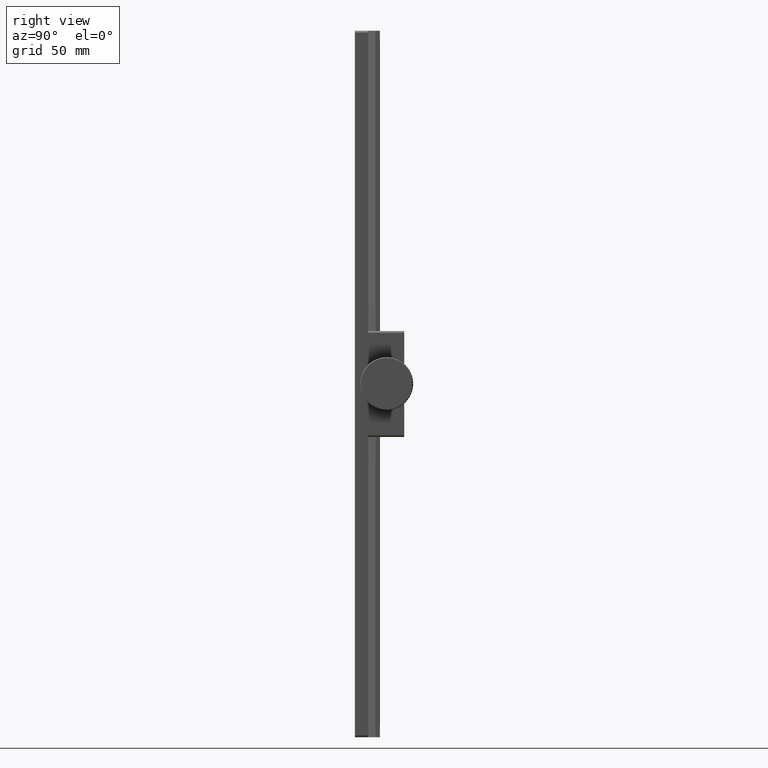
[diagram: clean part render]
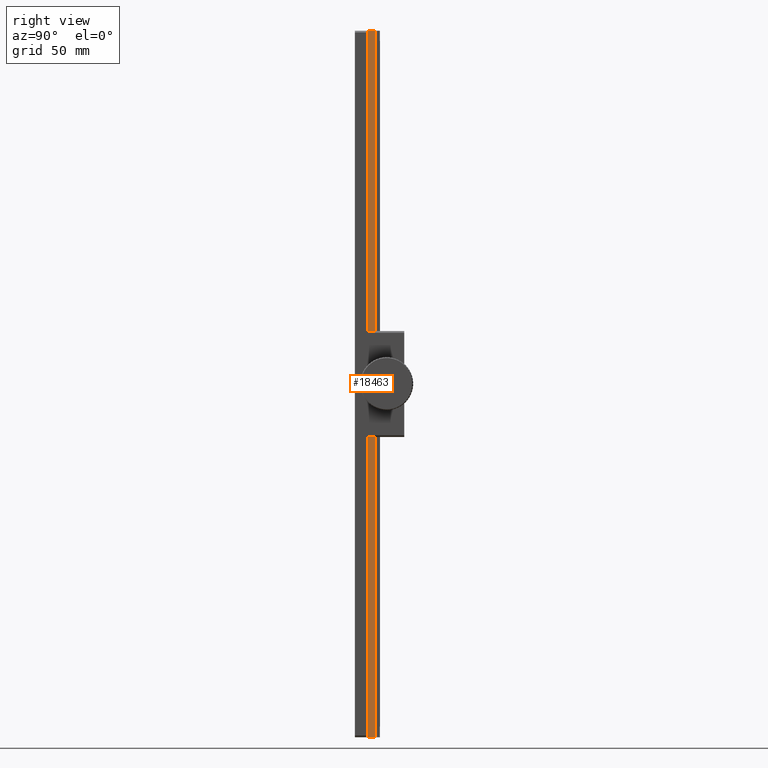
[diagram: same view with one face highlighted and labeled with its STEP entity id]
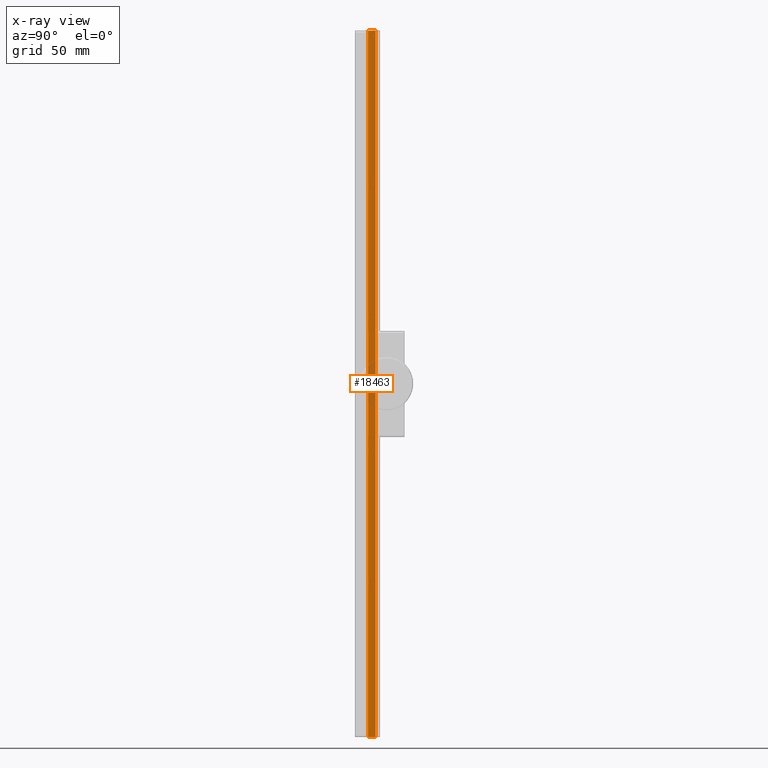
[diagram: x-ray of the same camera — body ghosted, the highlighted face saturated]
A machine part, right view. The second image highlights one B-rep face of the part: STEP entity #18463.
The next image is the same camera in x-ray: the body ghosted, the highlighted face saturated — about 5% of this face is hidden behind the body in this view.
In plain terms, the highlighted planar face has unit normal (-0.866, 0.5, 0).
Its self-contained STEP definition (entity closure, byte-faithful):
#1001 = DIRECTION ( 'NONE',  ( -0.8660254037844345998, 0.5000000000000071054, 0.000000000000000000 ) ) ;
#1452 = AXIS2_PLACEMENT_3D ( 'NONE', #15537, #1001, #85757 ) ;
#2059 = ORIENTED_EDGE ( 'NONE', *, *, #59597, .F. ) ;
#5658 = VERTEX_POINT ( 'NONE', #49187 ) ;
#8688 = VERTEX_POINT ( 'NONE', #91041 ) ;
#14538 = EDGE_CURVE ( 'NONE', #93984, #8688, #81279, .T. ) ;
#15537 = CARTESIAN_POINT ( 'NONE',  ( 82.71511587513879249, 69.30272800986782045, 413.8231807833473681 ) ) ;
#18463 = ADVANCED_FACE ( 'NONE', ( #72207 ), #38423, .F. ) ;
#22948 = VECTOR ( 'NONE', #92284, 1000.000000000000000 ) ;
#30060 = VECTOR ( 'NONE', #65663, 1000.000000000000227 ) ;
#31478 = LINE ( 'NONE', #95431, #84532 ) ;
#32239 = LINE ( 'NONE', #73319, #52479 ) ;
#35474 = CARTESIAN_POINT ( 'NONE',  ( 82.41511587513878112, 68.78311276759733062, 413.8231807833473681 ) ) ;
#38423 = PLANE ( 'NONE',  #1452 ) ;
#41594 = EDGE_CURVE ( 'NONE', #83625, #8688, #60564, .T. ) ;
#48340 = DIRECTION ( 'NONE',  ( -0.5000000000000073275, -0.8660254037844343777, 0.000000000000000000 ) ) ;
#49187 = CARTESIAN_POINT ( 'NONE',  ( 82.41511587513879533, 68.78311276759721693, 13.82318078334727751 ) ) ;
#50800 = CARTESIAN_POINT ( 'NONE',  ( 80.00156960994748090, 64.60272800986783182, 13.82318078334727041 ) ) ;
#52479 = VECTOR ( 'NONE', #48340, 1000.000000000000114 ) ;
#56931 = CARTESIAN_POINT ( 'NONE',  ( 82.41511587513879533, 68.78311276759724535, 413.8231807833473681 ) ) ;
#57831 = ORIENTED_EDGE ( 'NONE', *, *, #101830, .F. ) ;
#59597 = EDGE_CURVE ( 'NONE', #5658, #83625, #32239, .T. ) ;
#60564 = LINE ( 'NONE', #69372, #22948 ) ;
#61724 = EDGE_LOOP ( 'NONE', ( #57831, #71842, #64046, #2059 ) ) ;
#64046 = ORIENTED_EDGE ( 'NONE', *, *, #41594, .F. ) ;
#65663 = DIRECTION ( 'NONE',  ( -0.4999999999999936162, -0.8660254037844422603, 0.000000000000000000 ) ) ;
#69372 = CARTESIAN_POINT ( 'NONE',  ( 80.00156960994749511, 64.60272800986781760, 413.8231807833473681 ) ) ;
#71842 = ORIENTED_EDGE ( 'NONE', *, *, #14538, .T. ) ;
#72207 = FACE_OUTER_BOUND ( 'NONE', #61724, .T. ) ;
#73319 = CARTESIAN_POINT ( 'NONE',  ( 82.41511587513878112, 68.78311276759717430, 13.82318078334728284 ) ) ;
#81279 = LINE ( 'NONE', #35474, #30060 ) ;
#83625 = VERTEX_POINT ( 'NONE', #50800 ) ;
#84532 = VECTOR ( 'NONE', #86100, 1000.000000000000000 ) ;
#85757 = DIRECTION ( 'NONE',  ( -0.5000000000000069944, -0.8660254037844344888, 0.000000000000000000 ) ) ;
#86100 = DIRECTION ( 'NONE',  ( -0.000000000000000000, -0.000000000000000000, -1.000000000000000000 ) ) ;
#91041 = CARTESIAN_POINT ( 'NONE',  ( 80.00156960994748090, 64.60272800986783182, 413.8231807833473681 ) ) ;
#92284 = DIRECTION ( 'NONE',  ( 0.000000000000000000, 0.000000000000000000, 1.000000000000000000 ) ) ;
#93984 = VERTEX_POINT ( 'NONE', #56931 ) ;
#95431 = CARTESIAN_POINT ( 'NONE',  ( 82.41511587513885218, 68.78311276759728798, 413.8231807833473681 ) ) ;
#101830 = EDGE_CURVE ( 'NONE', #93984, #5658, #31478, .T. ) ;